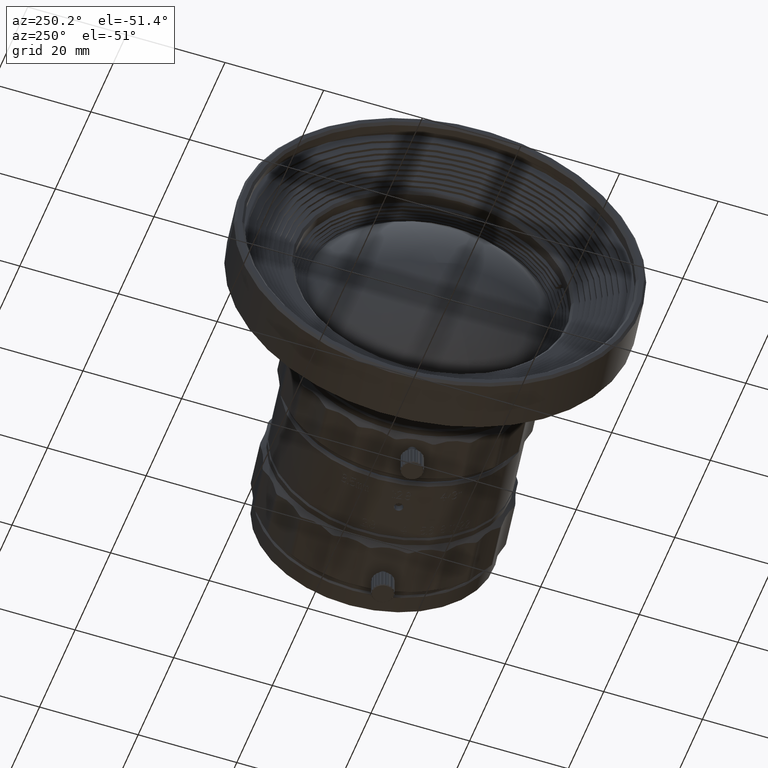
[diagram: clean part render]
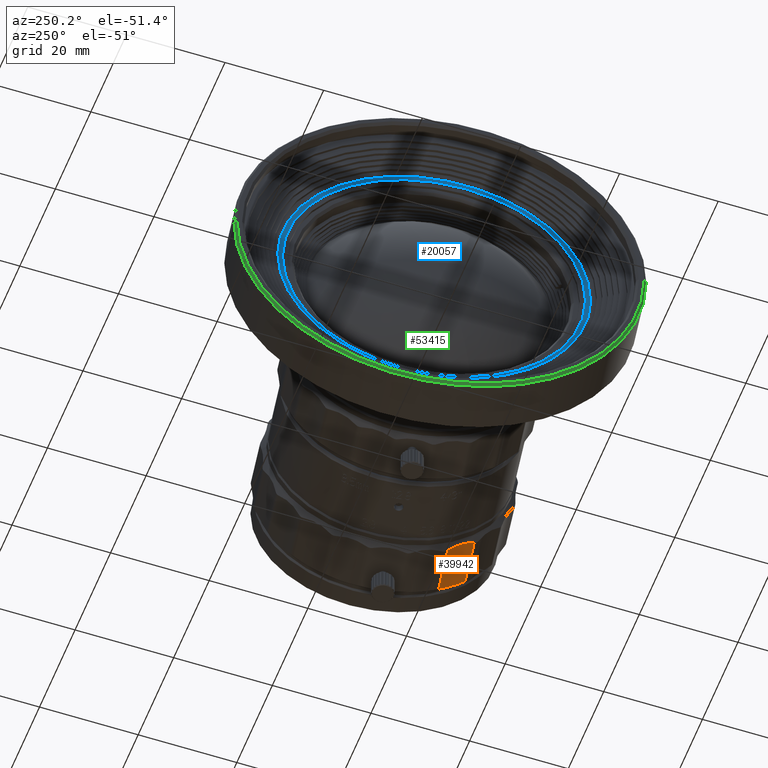
[diagram: same view with three faces highlighted in distinct colors, each labeled with its STEP entity id]
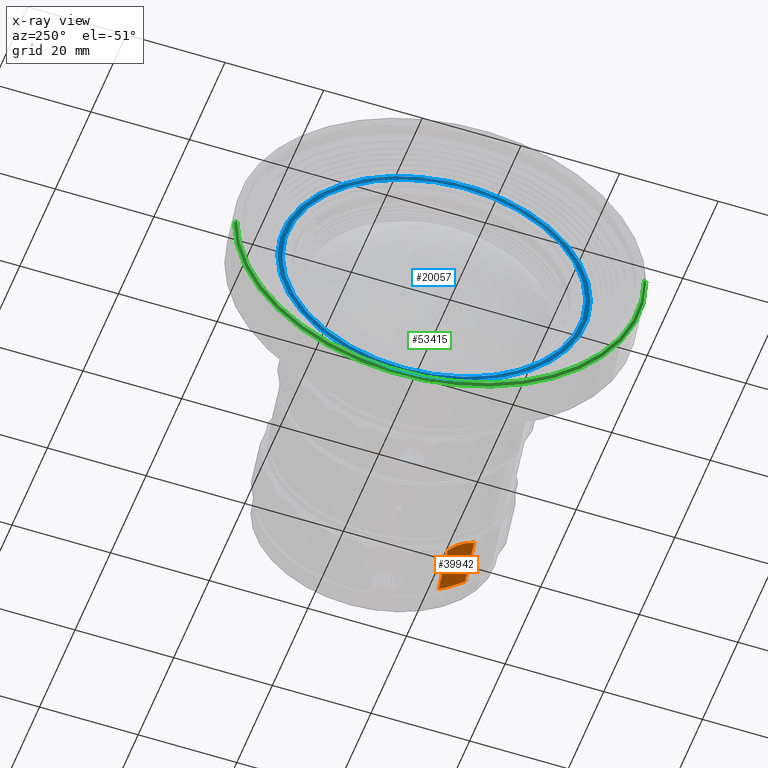
[diagram: x-ray of the same camera — body ghosted, the three highlighted faces saturated]
A machine part, auxiliary view with three faces highlighted in distinct colors.
The next image is the same camera in x-ray (body ghosted, the three faces saturated) — at least one of them is partly hidden behind the body in this view.
Their STEP definitions:

[orange] entity #39942 — the highlighted cylindrical surface (partial cylindrical patch) has radius 22 mm, axis along (0.9869, -0.1612, -0).
#630 = CARTESIAN_POINT ( 'NONE',  ( 151.2654246290775006, -50.60308945829699923, -37.51614439971999815 ) ) ;
#1592 = CARTESIAN_POINT ( 'NONE',  ( 161.5861624962435315, -47.06938963058089342, -41.02819074848000014 ) ) ;
#4451 = FACE_OUTER_BOUND ( 'NONE', #22597, .T. ) ;
#4579 = EDGE_CURVE ( 'NONE', #13681, #32456, #20619, .T. ) ;
#4797 = ORIENTED_EDGE ( 'NONE', *, *, #22684, .T. ) ;
#4849 = CARTESIAN_POINT ( 'NONE',  ( 152.0958221739730050, -45.51923578774430013, -41.02819074848000014 ) ) ;
#5541 = CARTESIAN_POINT ( 'NONE',  ( 160.7557649513489935, -52.15324330113379858, -37.51614439971999815 ) ) ;
#9199 = CARTESIAN_POINT ( 'NONE',  ( 161.1838809924519751, -62.04400558282419809, -57.26602057562000425 ) ) ;
#9497 = DIRECTION ( 'NONE',  ( -0.09080937289455967565, -0.5559524670430738835, -0.8262387743160064524 ) ) ;
#11766 = DIRECTION ( 'NONE',  ( -0.9869211278471873294, 0.1612038690876735625, -2.549235506312000725E-14 ) ) ;
#13681 = VERTEX_POINT ( 'NONE', #630 ) ;
#13886 = CARTESIAN_POINT ( 'NONE',  ( 161.1824707507895482, -51.26505359286899477, -37.98008626585022540 ) ) ;
#13894 = AXIS2_PLACEMENT_3D ( 'NONE', #9199, #22935, #9497 ) ;
#15621 = VERTEX_POINT ( 'NONE', #5541 ) ;
#17689 = CARTESIAN_POINT ( 'NONE',  ( 151.1518511282173449, -48.71214245227505302, -38.50737499828676391 ) ) ;
#18592 = B_SPLINE_CURVE_WITH_KNOTS ( 'NONE', 3,
 ( #18943, #50778, #46300, #28753 ),
 .UNSPECIFIED., .F., .F.,
 ( 4, 4 ),
 ( 0.000000000000000000, 1.000000000000000000 ),
 .UNSPECIFIED. ) ;
#18943 = CARTESIAN_POINT ( 'NONE',  ( 161.5861624962435315, -47.06938963058089342, -41.02819074848000014 ) ) ;
#20619 = B_SPLINE_CURVE_WITH_KNOTS ( 'NONE', 3,
 ( #30826, #58459, #17689, #50115, #49836, #4849 ),
 .UNSPECIFIED., .F., .F.,
 ( 4, 2, 4 ),
 ( 0.000000000000000000, 0.5000000000000000000, 1.000000000000000000 ),
 .UNSPECIFIED. ) ;
#22597 = EDGE_LOOP ( 'NONE', ( #41381, #4797, #58553, #39798, #53171 ) ) ;
#22684 = EDGE_CURVE ( 'NONE', #34734, #15621, #43471, .T. ) ;
#22758 = EDGE_CURVE ( 'NONE', #54609, #34734, #18592, .T. ) ;
#22935 = DIRECTION ( 'NONE',  ( 0.9869211278471834436, -0.1612038690876970715, -3.816965109455081777E-16 ) ) ;
#26733 = CARTESIAN_POINT ( 'NONE',  ( 161.6025848063125068, -49.55512712914259765, -39.08877721163000274 ) ) ;
#27246 = CARTESIAN_POINT ( 'NONE',  ( 161.5861624962435315, -47.06938963058089342, -41.02819074848000014 ) ) ;
#28753 = CARTESIAN_POINT ( 'NONE',  ( 161.6025848063125068, -49.55512712914259765, -39.08877721163000274 ) ) ;
#30555 = LINE ( 'NONE', #34389, #53270 ) ;
#30826 = CARTESIAN_POINT ( 'NONE',  ( 151.2654246290775006, -50.60308945829699923, -37.51614439971999815 ) ) ;
#32456 = VERTEX_POINT ( 'NONE', #37948 ) ;
#33652 = VECTOR ( 'NONE', #46282, 1000.000000000000114 ) ;
#34389 = CARTESIAN_POINT ( 'NONE',  ( 160.7557649513489935, -52.15324330113379858, -37.51614439971999815 ) ) ;
#34734 = VERTEX_POINT ( 'NONE', #46381 ) ;
#36534 = CARTESIAN_POINT ( 'NONE',  ( 160.7557649513489935, -52.15324330113379858, -37.51614439971999815 ) ) ;
#37159 = EDGE_CURVE ( 'NONE', #54609, #32456, #41853, .T. ) ;
#37948 = CARTESIAN_POINT ( 'NONE',  ( 152.0958221739730050, -45.51923578774430013, -41.02819074848000014 ) ) ;
#39798 = ORIENTED_EDGE ( 'NONE', *, *, #4579, .T. ) ;
#39942 = ADVANCED_FACE ( 'NONE', ( #4451 ), #50002, .F. ) ;
#41381 = ORIENTED_EDGE ( 'NONE', *, *, #22758, .T. ) ;
#41853 = LINE ( 'NONE', #1592, #33652 ) ;
#43471 = B_SPLINE_CURVE_WITH_KNOTS ( 'NONE', 3,
 ( #26733, #58549, #13886, #36534 ),
 .UNSPECIFIED., .F., .F.,
 ( 4, 4 ),
 ( 0.000000000000000000, 1.000000000000000000 ),
 .UNSPECIFIED. ) ;
#46282 = DIRECTION ( 'NONE',  ( -0.9869211278471861082, 0.1612038690876810010, -3.103417138120000073E-14 ) ) ;
#46300 = CARTESIAN_POINT ( 'NONE',  ( 161.7400588967286694, -48.71348427571233941, -39.67018983326452286 ) ) ;
#46381 = CARTESIAN_POINT ( 'NONE',  ( 161.6025848063125068, -49.55512712914259765, -39.08877721163000274 ) ) ;
#49713 = EDGE_CURVE ( 'NONE', #15621, #13681, #30555, .T. ) ;
#49836 = CARTESIAN_POINT ( 'NONE',  ( 151.6961986928052966, -46.24154626069102392, -40.31764576420626867 ) ) ;
#50002 = CYLINDRICAL_SURFACE ( 'NONE', #13894, 22.00000000000000711 ) ;
#50115 = CARTESIAN_POINT ( 'NONE',  ( 151.4267679925498840, -47.02894743344712936, -39.67016456250456002 ) ) ;
#50778 = CARTESIAN_POINT ( 'NONE',  ( 161.7351769242903288, -47.88127997002404612, -40.31767711074005689 ) ) ;
#53171 = ORIENTED_EDGE ( 'NONE', *, *, #37159, .F. ) ;
#53270 = VECTOR ( 'NONE', #11766, 1000.000000000000114 ) ;
#54609 = VERTEX_POINT ( 'NONE', #27246 ) ;
#58459 = CARTESIAN_POINT ( 'NONE',  ( 151.1435119149828381, -49.62530218034213902, -37.98007954615911785 ) ) ;
#58549 = CARTESIAN_POINT ( 'NONE',  ( 161.4651128416967083, -50.39675696801741367, -38.50734524802221870 ) ) ;
#58553 = ORIENTED_EDGE ( 'NONE', *, *, #49713, .T. ) ;

[blue] entity #20057 — the highlighted planar face has unit normal (0.9869, -0.1612, 0).
#1864 = VERTEX_POINT ( 'NONE', #30144 ) ;
#2242 = CARTESIAN_POINT ( 'NONE',  ( 107.5436333558011910, -26.68339127248659892, -18.29668510068000131 ) ) ;
#2840 = DIRECTION ( 'NONE',  ( 0.000000000000000000, 0.000000000000000000, -1.000000000000000000 ) ) ;
#4236 = CARTESIAN_POINT ( 'NONE',  ( 107.5436333558011910, -26.68339127248659892, -18.29668510068000131 ) ) ;
#5924 = DIRECTION ( 'NONE',  ( 0.1612038690876967384, 0.9869211278471834436, 0.000000000000000000 ) ) ;
#6160 = ORIENTED_EDGE ( 'NONE', *, *, #40256, .F. ) ;
#7158 = VERTEX_POINT ( 'NONE', #42876 ) ;
#7778 = AXIS2_PLACEMENT_3D ( 'NONE', #41988, #38088, #5924 ) ;
#12900 = VERTEX_POINT ( 'NONE', #18456 ) ;
#12998 = EDGE_LOOP ( 'NONE', ( #6160, #47635 ) ) ;
#13113 = DIRECTION ( 'NONE',  ( 0.9869211278471835547, -0.1612038690876969049, 0.000000000000000000 ) ) ;
#13176 = DIRECTION ( 'NONE',  ( 0.1612038690876971825, 0.9869211278471835547, 0.000000000000000000 ) ) ;
#14820 = EDGE_LOOP ( 'NONE', ( #44825, #30357 ) ) ;
#15757 = AXIS2_PLACEMENT_3D ( 'NONE', #49355, #36248, #32088 ) ;
#16260 = FACE_BOUND ( 'NONE', #12998, .T. ) ;
#18256 = CIRCLE ( 'NONE', #7778, 30.39980164833001552 ) ;
#18456 = CARTESIAN_POINT ( 'NONE',  ( 112.2829951319230162, 2.331894128766749841, -18.29668510068000131 ) ) ;
#20057 = ADVANCED_FACE ( 'NONE', ( #16260, #24911 ), #42761, .F. ) ;
#21525 = CIRCLE ( 'NONE', #15757, 29.39980164832998355 ) ;
#22649 = DIRECTION ( 'NONE',  ( 0.1612038690876967384, 0.9869211278471834436, 0.000000000000000000 ) ) ;
#22710 = DIRECTION ( 'NONE',  ( 0.9869211278471834436, -0.1612038690876970715, 0.000000000000000000 ) ) ;
#24911 = FACE_OUTER_BOUND ( 'NONE', #14820, .T. ) ;
#30144 = CARTESIAN_POINT ( 'NONE',  ( 102.8042715796795932, -55.69867667373989661, -18.29668510068000131 ) ) ;
#30357 = ORIENTED_EDGE ( 'NONE', *, *, #30770, .T. ) ;
#30770 = EDGE_CURVE ( 'NONE', #7158, #46194, #18256, .T. ) ;
#31579 = CARTESIAN_POINT ( 'NONE',  ( 102.6430677105920068, -56.68559780158710026, -18.29668510068000131 ) ) ;
#31940 = CIRCLE ( 'NONE', #42358, 29.39980164832998355 ) ;
#32088 = DIRECTION ( 'NONE',  ( 0.1612038690876971825, 0.9869211278471835547, 0.000000000000000000 ) ) ;
#34414 = DIRECTION ( 'NONE',  ( 0.9869211278471834436, -0.1612038690876969049, 0.000000000000000000 ) ) ;
#36248 = DIRECTION ( 'NONE',  ( -0.9869211278471834436, 0.1612038690876970715, 0.000000000000000000 ) ) ;
#37729 = CIRCLE ( 'NONE', #42437, 30.39980164833001552 ) ;
#38088 = DIRECTION ( 'NONE',  ( -0.9869211278471835547, 0.1612038690876969049, 0.000000000000000000 ) ) ;
#40256 = EDGE_CURVE ( 'NONE', #12900, #1864, #21525, .T. ) ;
#41988 = CARTESIAN_POINT ( 'NONE',  ( 107.5436333558011910, -26.68339127248659892, -18.29668510068000131 ) ) ;
#42358 = AXIS2_PLACEMENT_3D ( 'NONE', #4236, #22710, #13176 ) ;
#42437 = AXIS2_PLACEMENT_3D ( 'NONE', #49731, #13113, #22649 ) ;
#42470 = EDGE_CURVE ( 'NONE', #12900, #1864, #31940, .T. ) ;
#42761 = PLANE ( 'NONE',  #57982 ) ;
#42876 = CARTESIAN_POINT ( 'NONE',  ( 112.4441990010105883, 3.318815256613929954, -18.29668510068000131 ) ) ;
#43940 = EDGE_CURVE ( 'NONE', #7158, #46194, #37729, .T. ) ;
#44825 = ORIENTED_EDGE ( 'NONE', *, *, #43940, .F. ) ;
#46194 = VERTEX_POINT ( 'NONE', #31579 ) ;
#47635 = ORIENTED_EDGE ( 'NONE', *, *, #42470, .T. ) ;
#49355 = CARTESIAN_POINT ( 'NONE',  ( 107.5436333558011910, -26.68339127248659892, -18.29668510068000131 ) ) ;
#49731 = CARTESIAN_POINT ( 'NONE',  ( 107.5436333558011910, -26.68339127248659892, -18.29668510068000131 ) ) ;
#57982 = AXIS2_PLACEMENT_3D ( 'NONE', #2242, #34414, #2840 ) ;

[green] entity #53415 — the highlighted conical surface has half-angle 45 deg.
#337 = CARTESIAN_POINT ( 'NONE',  ( 100.7508754868545964, -25.57386101788690169, -18.29668510068000131 ) ) ;
#4040 = AXIS2_PLACEMENT_3D ( 'NONE', #27585, #45724, #23131 ) ;
#6033 = VERTEX_POINT ( 'NONE', #33930 ) ;
#7065 = EDGE_CURVE ( 'NONE', #39779, #6033, #24138, .T. ) ;
#8334 = CARTESIAN_POINT ( 'NONE',  ( 94.79621312838270342, -65.13111312889699889, -18.29668510068000131 ) ) ;
#8759 = ORIENTED_EDGE ( 'NONE', *, *, #14936, .F. ) ;
#9396 = FACE_OUTER_BOUND ( 'NONE', #45105, .T. ) ;
#9631 = VECTOR ( 'NONE', #52084, 1000.000000000000000 ) ;
#11325 = DIRECTION ( 'NONE',  ( -0.9869211278471835547, 0.1612038690876969049, 0.000000000000000000 ) ) ;
#11690 = CARTESIAN_POINT ( 'NONE',  ( 101.2443360507782018, -25.65446295243075170, -18.29668510068000131 ) ) ;
#14936 = EDGE_CURVE ( 'NONE', #39987, #6033, #15041, .T. ) ;
#15041 = CIRCLE ( 'NONE', #51160, 39.49980200000001673 ) ;
#15173 = CARTESIAN_POINT ( 'NONE',  ( 107.6924589731736006, 13.82218722403549904, -18.29668510068000131 ) ) ;
#18270 = ORIENTED_EDGE ( 'NONE', *, *, #7065, .T. ) ;
#20918 = DIRECTION ( 'NONE',  ( -0.9869211278471835547, 0.1612038690876964053, 0.000000000000000000 ) ) ;
#21177 = CONICAL_SURFACE ( 'NONE', #4040, 39.74980200000002384, 0.7853981633972990650 ) ;
#22415 = ORIENTED_EDGE ( 'NONE', *, *, #54124, .F. ) ;
#23131 = DIRECTION ( 'NONE',  ( -0.1612038690876970437, -0.9869211278471833326, 0.000000000000000000 ) ) ;
#24138 = LINE ( 'NONE', #56832, #55855 ) ;
#25105 = ORIENTED_EDGE ( 'NONE', *, *, #51881, .T. ) ;
#27585 = CARTESIAN_POINT ( 'NONE',  ( 100.9976057688163991, -25.61416198515880183, -18.29668510068000131 ) ) ;
#33063 = LINE ( 'NONE', #15173, #9631 ) ;
#33930 = CARTESIAN_POINT ( 'NONE',  ( 94.38335457625660752, -64.55705015746728748, -18.29668510068000131 ) ) ;
#33958 = DIRECTION ( 'NONE',  ( 0.1612038690876967939, 0.9869211278471835547, 0.000000000000000000 ) ) ;
#35492 = VERTEX_POINT ( 'NONE', #40161 ) ;
#38405 = DIRECTION ( 'NONE',  ( -0.5838698839561746734, 0.8118472507861336229, 0.000000000000000000 ) ) ;
#39779 = VERTEX_POINT ( 'NONE', #8334 ) ;
#39987 = VERTEX_POINT ( 'NONE', #56487 ) ;
#40161 = CARTESIAN_POINT ( 'NONE',  ( 107.6924589731736006, 13.82218722403549904, -18.29668510068000131 ) ) ;
#45105 = EDGE_LOOP ( 'NONE', ( #25105, #18270, #8759, #22415 ) ) ;
#45724 = DIRECTION ( 'NONE',  ( 0.9869211278471835547, -0.1612038690876969049, 0.000000000000000000 ) ) ;
#45810 = CIRCLE ( 'NONE', #47672, 39.99980200000002384 ) ;
#47672 = AXIS2_PLACEMENT_3D ( 'NONE', #11690, #20918, #57212 ) ;
#51160 = AXIS2_PLACEMENT_3D ( 'NONE', #337, #11325, #33958 ) ;
#51881 = EDGE_CURVE ( 'NONE', #35492, #39779, #45810, .T. ) ;
#52084 = DIRECTION ( 'NONE',  ( -0.8118466911785556794, -0.5838706620668919767, 0.000000000000000000 ) ) ;
#53415 = ADVANCED_FACE ( 'NONE', ( #9396 ), #21177, .T. ) ;
#54124 = EDGE_CURVE ( 'NONE', #35492, #39987, #33063, .T. ) ;
#55855 = VECTOR ( 'NONE', #38405, 999.9999999999998863 ) ;
#56487 = CARTESIAN_POINT ( 'NONE',  ( 107.1183963974524005, 13.40932812169353916, -18.29668510068000131 ) ) ;
#56832 = CARTESIAN_POINT ( 'NONE',  ( 94.79621312838270342, -65.13111312889699889, -18.29668510068000131 ) ) ;
#57212 = DIRECTION ( 'NONE',  ( 0.1612038690876962943, 0.9869211278471835547, 0.000000000000000000 ) ) ;